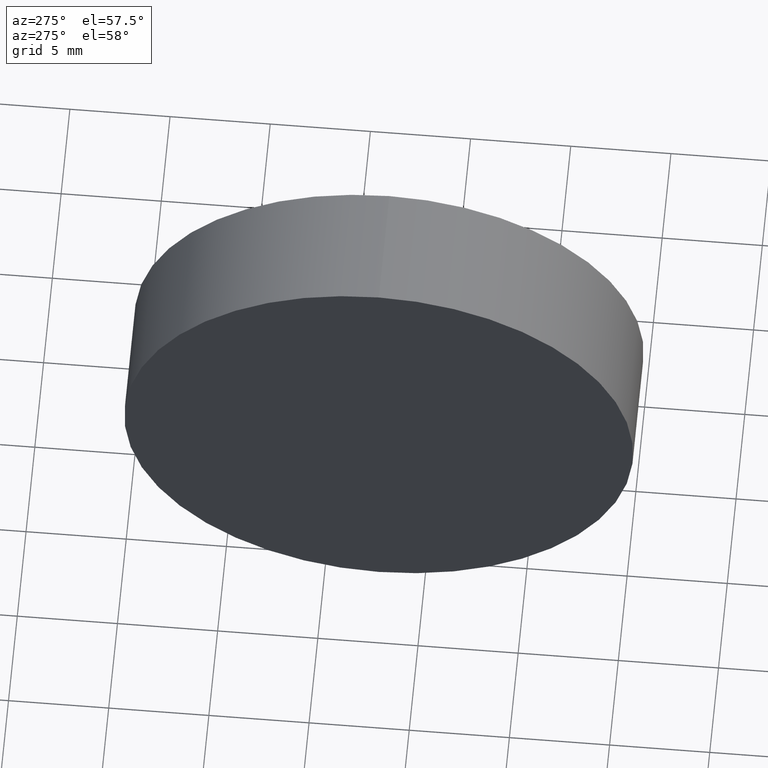
[diagram: clean part render]
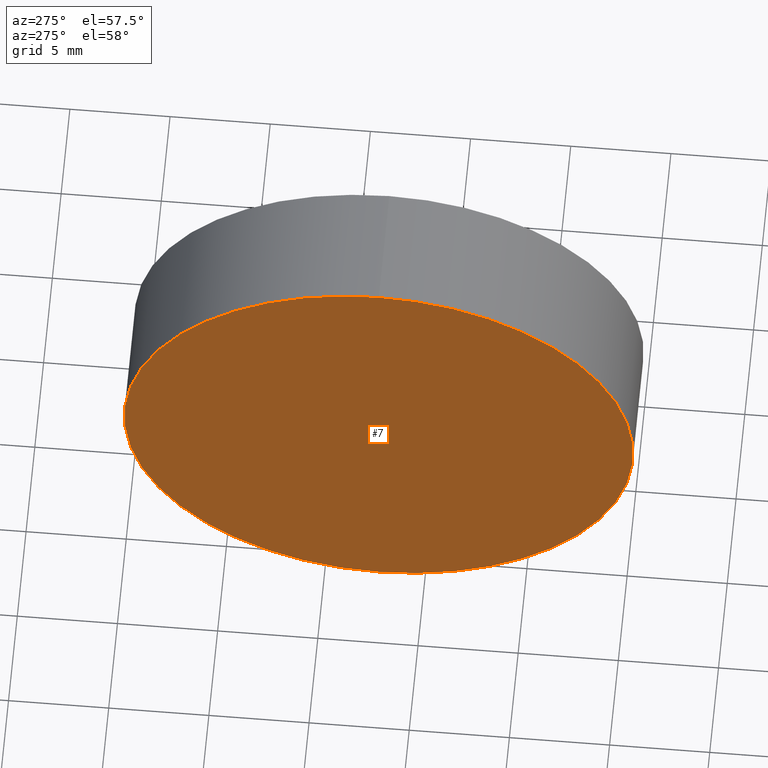
[diagram: same view with one face highlighted and labeled with its STEP entity id]
A machine part, auxiliary view. The second image highlights one B-rep face of the part: STEP entity #7.
In plain terms, the highlighted planar face has unit normal (1, 0, 0).
Its self-contained STEP definition (entity closure, byte-faithful):
#7 = ADVANCED_FACE ( 'NONE', ( #15 ), #136, .F. ) ;
#15 = FACE_OUTER_BOUND ( 'NONE', #25, .T. ) ;
#18 = DIRECTION ( 'NONE',  ( 0.0000000000000000000, 0.0000000000000000000, 1.000000000000000000 ) ) ;
#20 = CIRCLE ( 'NONE', #73, 12.70000000000000300 ) ;
#25 = EDGE_LOOP ( 'NONE', ( #62, #59 ) ) ;
#26 = CARTESIAN_POINT ( 'NONE',  ( 268.8168258709342200, 77.29317934901541800, -12.70000000000000300 ) ) ;
#51 = EDGE_CURVE ( 'NONE', #117, #93, #20, .T. ) ;
#59 = ORIENTED_EDGE ( 'NONE', *, *, #51, .T. ) ;
#62 = ORIENTED_EDGE ( 'NONE', *, *, #129, .T. ) ;
#67 = CARTESIAN_POINT ( 'NONE',  ( 268.8168258709342200, 77.29317934901541800, 0.0000000000000000000 ) ) ;
#73 = AXIS2_PLACEMENT_3D ( 'NONE', #76, #89, #18 ) ;
#76 = CARTESIAN_POINT ( 'NONE',  ( 268.8168258709342200, 77.29317934901541800, 0.0000000000000000000 ) ) ;
#83 = DIRECTION ( 'NONE',  ( -1.000000000000000000, -0.0000000000000000000, -0.0000000000000000000 ) ) ;
#84 = DIRECTION ( 'NONE',  ( 0.0000000000000000000, 0.0000000000000000000, -1.000000000000000000 ) ) ;
#86 = DIRECTION ( 'NONE',  ( 1.000000000000000000, 0.0000000000000000000, 0.0000000000000000000 ) ) ;
#89 = DIRECTION ( 'NONE',  ( -1.000000000000000000, -0.0000000000000000000, -0.0000000000000000000 ) ) ;
#93 = VERTEX_POINT ( 'NONE', #102 ) ;
#98 = DIRECTION ( 'NONE',  ( 0.0000000000000000000, 0.0000000000000000000, 1.000000000000000000 ) ) ;
#99 = CARTESIAN_POINT ( 'NONE',  ( 268.8168258709342200, 77.29317934901541800, 0.0000000000000000000 ) ) ;
#102 = CARTESIAN_POINT ( 'NONE',  ( 268.8168258709342200, 77.29317934901541800, 12.70000000000000300 ) ) ;
#105 = AXIS2_PLACEMENT_3D ( 'NONE', #67, #83, #98 ) ;
#108 = CIRCLE ( 'NONE', #105, 12.70000000000000300 ) ;
#110 = AXIS2_PLACEMENT_3D ( 'NONE', #99, #86, #84 ) ;
#117 = VERTEX_POINT ( 'NONE', #26 ) ;
#129 = EDGE_CURVE ( 'NONE', #93, #117, #108, .T. ) ;
#136 = PLANE ( 'NONE',  #110 ) ;